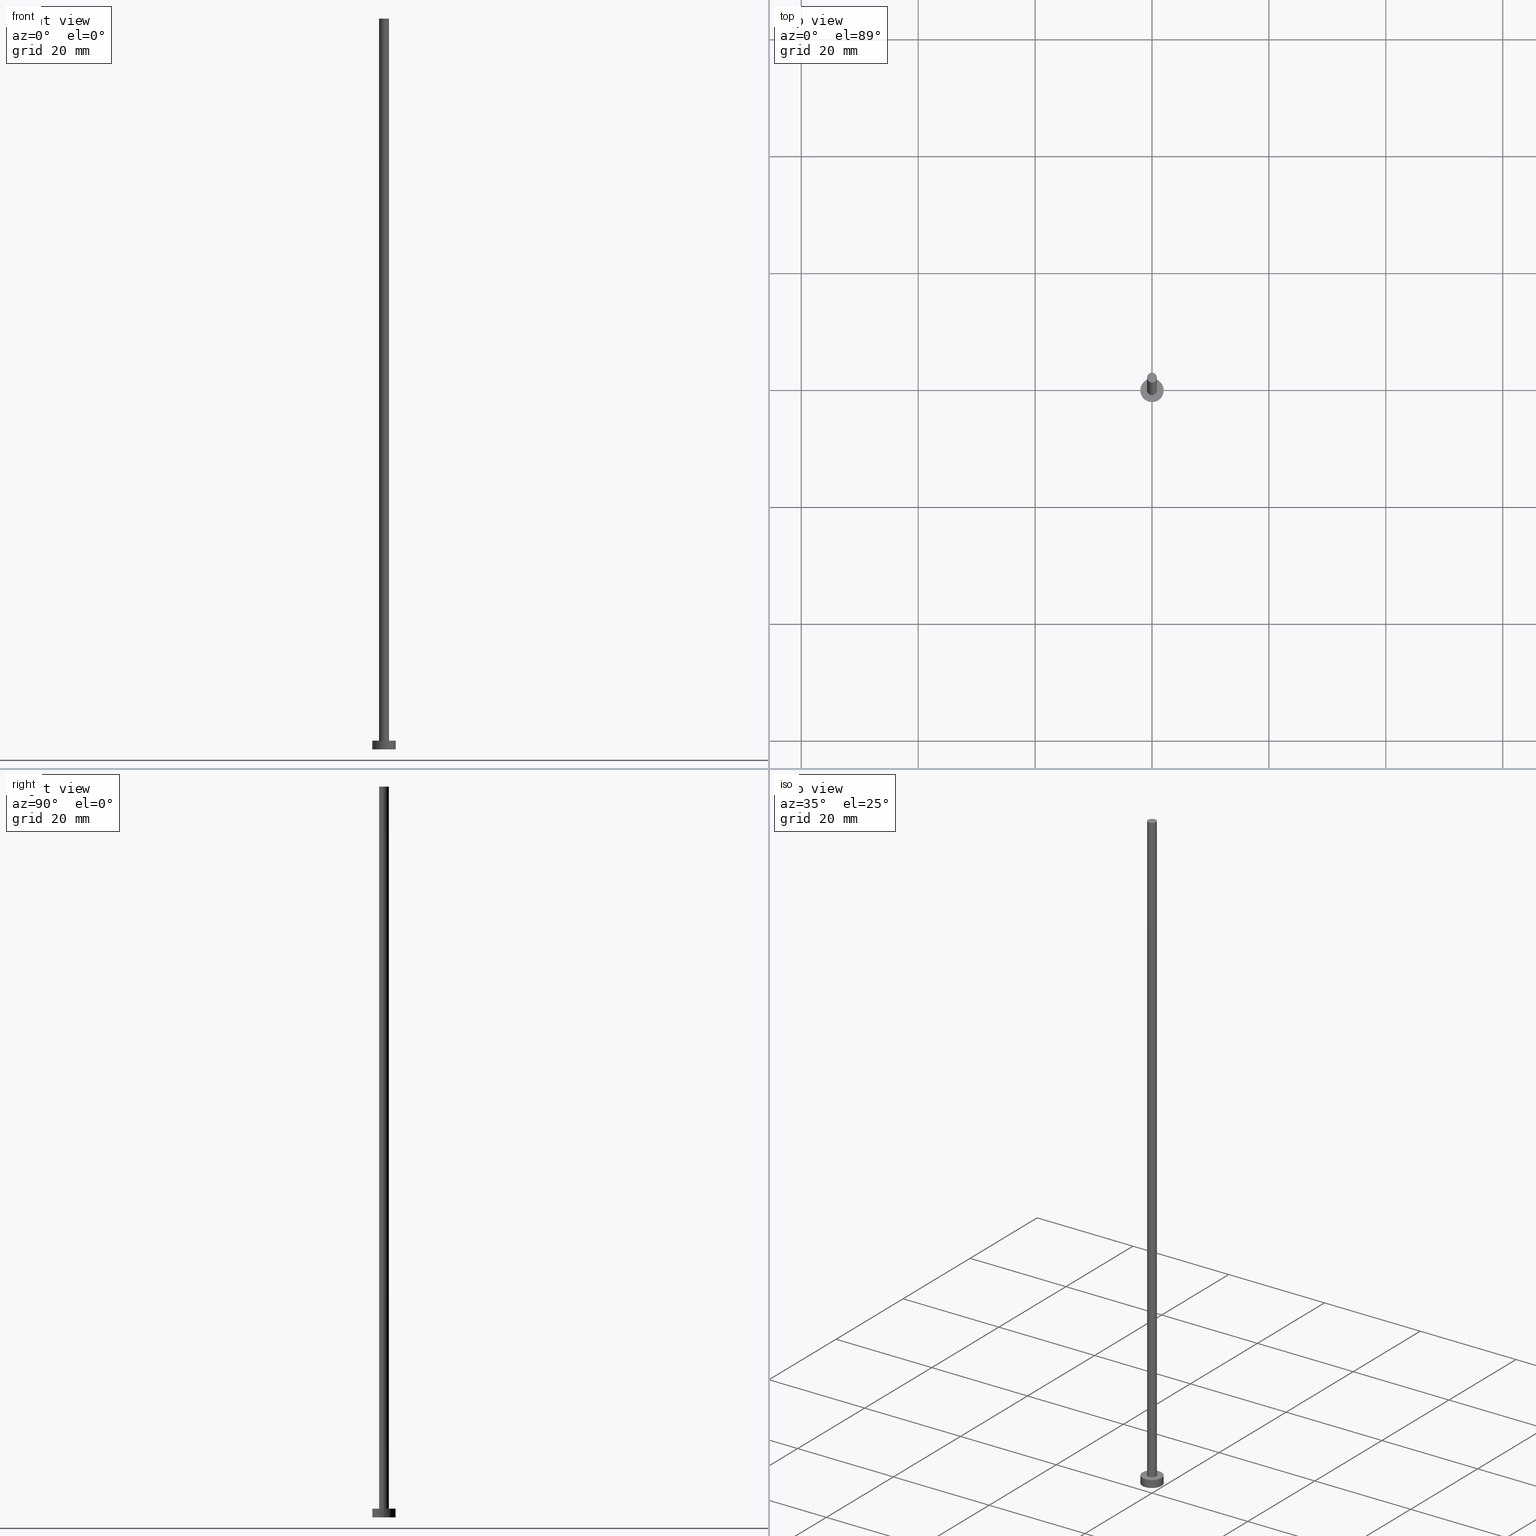
[diagram: canonical four-view strip — front | top / right | iso, engineering-drawing reading convention]
A machine part, canonical four-view strip (front | top / right | iso — engineering-drawing reading convention). The complete STEP part file that produces these views, byte-faithful:
ISO-10303-21;
HEADER;
FILE_DESCRIPTION (( 'STEP AP203' ),
    '1' );
FILE_NAME ('465d.STEP',
    '2023-02-12T12:55:21',
    ( '' ),
    ( '' ),
    'SwSTEP 2.0',
    'SolidWorks 2019',
    '' );
FILE_SCHEMA (( 'CONFIG_CONTROL_DESIGN' ));
ENDSEC;

DATA;
#1 = ORIENTED_EDGE ( 'NONE', *, *, #132, .F. ) ;
#2 = PERSON_AND_ORGANIZATION ( #13, #120 ) ;
#3 = DIRECTION ( 'NONE',  ( 0.000000000000000000, 0.000000000000000000, 1.000000000000000000 ) ) ;
#4 = EDGE_LOOP ( 'NONE', ( #87, #183 ) ) ;
#5 = AXIS2_PLACEMENT_3D ( 'NONE', #180, #146, #45 ) ;
#6 = CARTESIAN_POINT ( 'NONE',  ( 0.8499999999999999778, 1.040949779275250140E-16, 1.500000000000000000 ) ) ;
#7 = CARTESIAN_POINT ( 'NONE',  ( -2.000000000000000000, 0.000000000000000000, 1.500000000000000000 ) ) ;
#8 = ORIENTED_EDGE ( 'NONE', *, *, #220, .F. ) ;
#9 = PRODUCT_DEFINITION_FORMATION_WITH_SPECIFIED_SOURCE ( 'LIBOVOLN�', '', #117, .NOT_KNOWN. ) ;
#10 = AXIS2_PLACEMENT_3D ( 'NONE', #24, #3, #105 ) ;
#11 = COORDINATED_UNIVERSAL_TIME_OFFSET ( 1, 0, .AHEAD. ) ;
#12 = LINE ( 'NONE', #93, #127 ) ;
#13 = PERSON ( 'NEUR�EN�', 'NEUR�EN�', 'NEUR�EN�', ('NEUR�EN�'), ('NEUR�EN�'), ('NEUR�EN�') ) ;
#14 =( GEOMETRIC_REPRESENTATION_CONTEXT ( 3 ) GLOBAL_UNCERTAINTY_ASSIGNED_CONTEXT ( ( #116 ) ) GLOBAL_UNIT_ASSIGNED_CONTEXT ( ( #72, #52, #51 ) ) REPRESENTATION_CONTEXT ( 'NONE', 'WORKASPACE' ) );
#15 = AXIS2_PLACEMENT_3D ( 'NONE', #66, #202, #185 ) ;
#16 = CARTESIAN_POINT ( 'NONE',  ( 0.000000000000000000, 0.000000000000000000, 1.500000000000000000 ) ) ;
#17 = CC_DESIGN_APPROVAL ( #42, ( #9 ) ) ;
#18 = PERSON_AND_ORGANIZATION ( #13, #120 ) ;
#19 = CIRCLE ( 'NONE', #36, 2.000000000000000000 ) ;
#20 = DIRECTION ( 'NONE',  ( 0.000000000000000000, 0.000000000000000000, 1.000000000000000000 ) ) ;
#21 = ORIENTED_EDGE ( 'NONE', *, *, #189, .T. ) ;
#22 = DIRECTION ( 'NONE',  ( 0.000000000000000000, 0.000000000000000000, 1.000000000000000000 ) ) ;
#23 = LOCAL_TIME ( 13, 55, 21.00000000000000000, #11 ) ;
#24 = CARTESIAN_POINT ( 'NONE',  ( 0.000000000000000000, 0.000000000000000000, 125.0000000000000000 ) ) ;
#25 = VERTEX_POINT ( 'NONE', #188 ) ;
#26 = APPROVAL_STATUS ( 'not_yet_approved' ) ;
#27 = ORIENTED_EDGE ( 'NONE', *, *, #211, .T. ) ;
#28 = LOCAL_TIME ( 13, 55, 21.00000000000000000, #133 ) ;
#29 = DIRECTION ( 'NONE',  ( -0.000000000000000000, -0.000000000000000000, -1.000000000000000000 ) ) ;
#30 = CC_DESIGN_DATE_AND_TIME_ASSIGNMENT ( #174, #251, ( #167 ) ) ;
#31 = APPROVAL_DATE_TIME ( #108, #42 ) ;
#32 = APPROVAL_DATE_TIME ( #177, #119 ) ;
#33 = PLANE ( 'NONE',  #194 ) ;
#34 = CC_DESIGN_APPROVAL ( #119, ( #167 ) ) ;
#35 = PERSON_AND_ORGANIZATION ( #13, #120 ) ;
#36 = AXIS2_PLACEMENT_3D ( 'NONE', #118, #20, #101 ) ;
#37 = CC_DESIGN_PERSON_AND_ORGANIZATION_ASSIGNMENT ( #250, #98, ( #9 ) ) ;
#38 = DIRECTION ( 'NONE',  ( 0.000000000000000000, 0.000000000000000000, 1.000000000000000000 ) ) ;
#39 = PLANE ( 'NONE',  #215 ) ;
#40 = COORDINATED_UNIVERSAL_TIME_OFFSET ( 1, 0, .AHEAD. ) ;
#41 = DIRECTION ( 'NONE',  ( -1.000000000000000000, 0.000000000000000000, 0.000000000000000000 ) ) ;
#42 = APPROVAL ( #199, 'NEUR�EN�' ) ;
#43 = ORIENTED_EDGE ( 'NONE', *, *, #223, .F. ) ;
#44 = CARTESIAN_POINT ( 'NONE',  ( 0.8499999999999999778, 1.040949779275250140E-16, 125.0000000000000000 ) ) ;
#45 = DIRECTION ( 'NONE',  ( 1.000000000000000000, 0.000000000000000000, 0.000000000000000000 ) ) ;
#46 = ADVANCED_FACE ( 'NONE', ( #49, #206 ), #255, .T. ) ;
#47 = CARTESIAN_POINT ( 'NONE',  ( 0.000000000000000000, 0.000000000000000000, 0.000000000000000000 ) ) ;
#48 = EDGE_LOOP ( 'NONE', ( #236, #162 ) ) ;
#49 = FACE_BOUND ( 'NONE', #71, .T. ) ;
#50 = CALENDAR_DATE ( 2023, 12, 2 ) ;
#51 =( NAMED_UNIT ( * ) SI_UNIT ( $, .STERADIAN. ) SOLID_ANGLE_UNIT ( ) );
#52 =( NAMED_UNIT ( * ) PLANE_ANGLE_UNIT ( ) SI_UNIT ( $, .RADIAN. ) );
#53 = ORIENTED_EDGE ( 'NONE', *, *, #88, .T. ) ;
#54 = AXIS2_PLACEMENT_3D ( 'NONE', #47, #126, #150 ) ;
#55 = SECURITY_CLASSIFICATION_LEVEL ( 'unclassified' ) ;
#56 = CLOSED_SHELL ( 'NONE', ( #78, #239, #253, #46, #76, #193, #96 ) ) ;
#57 = LOCAL_TIME ( 13, 55, 21.00000000000000000, #63 ) ;
#58 = COORDINATED_UNIVERSAL_TIME_OFFSET ( 1, 0, .AHEAD. ) ;
#59 = DIRECTION ( 'NONE',  ( 1.000000000000000000, 0.000000000000000000, -0.000000000000000000 ) ) ;
#60 = APPROVAL_ROLE ( '' ) ;
#61 = APPROVAL_DATE_TIME ( #234, #85 ) ;
#62 = ORIENTED_EDGE ( 'NONE', *, *, #88, .F. ) ;
#63 = COORDINATED_UNIVERSAL_TIME_OFFSET ( 1, 0, .AHEAD. ) ;
#64 = AXIS2_PLACEMENT_3D ( 'NONE', #134, #159, #138 ) ;
#65 = ORIENTED_EDGE ( 'NONE', *, *, #223, .T. ) ;
#66 = CARTESIAN_POINT ( 'NONE',  ( 0.000000000000000000, 0.000000000000000000, 1.500000000000000000 ) ) ;
#67 = VERTEX_POINT ( 'NONE', #195 ) ;
#68 = CYLINDRICAL_SURFACE ( 'NONE', #228, 0.8499999999999999778 ) ;
#69 = DIRECTION ( 'NONE',  ( -1.000000000000000000, 0.000000000000000000, 0.000000000000000000 ) ) ;
#70 = PERSON_AND_ORGANIZATION_ROLE ( 'design_owner' ) ;
#71 = EDGE_LOOP ( 'NONE', ( #80, #205 ) ) ;
#72 =( LENGTH_UNIT ( ) NAMED_UNIT ( * ) SI_UNIT ( .MILLI., .METRE. ) );
#73 = EDGE_CURVE ( 'NONE', #25, #141, #91, .T. ) ;
#74 = LOCAL_TIME ( 13, 55, 21.00000000000000000, #40 ) ;
#75 = DIRECTION ( 'NONE',  ( 1.000000000000000000, 0.000000000000000000, 0.000000000000000000 ) ) ;
#76 = ADVANCED_FACE ( 'NONE', ( #213 ), #33, .F. ) ;
#77 = DIRECTION ( 'NONE',  ( 0.000000000000000000, 0.000000000000000000, 1.000000000000000000 ) ) ;
#78 = ADVANCED_FACE ( 'NONE', ( #79 ), #231, .T. ) ;
#79 = FACE_OUTER_BOUND ( 'NONE', #145, .T. ) ;
#80 = ORIENTED_EDGE ( 'NONE', *, *, #73, .F. ) ;
#81 = PERSON_AND_ORGANIZATION ( #13, #120 ) ;
#82 = CARTESIAN_POINT ( 'NONE',  ( 0.000000000000000000, 0.000000000000000000, 125.0000000000000000 ) ) ;
#83 = CIRCLE ( 'NONE', #10, 0.8499999999999999778 ) ;
#84 = ORIENTED_EDGE ( 'NONE', *, *, #179, .F. ) ;
#85 = APPROVAL ( #97, 'NEUR�EN�' ) ;
#86 = ORIENTED_EDGE ( 'NONE', *, *, #137, .T. ) ;
#87 = ORIENTED_EDGE ( 'NONE', *, *, #123, .T. ) ;
#88 = EDGE_CURVE ( 'NONE', #243, #25, #252, .T. ) ;
#89 = CARTESIAN_POINT ( 'NONE',  ( 0.000000000000000000, 0.000000000000000000, 1.500000000000000000 ) ) ;
#90 = AXIS2_PLACEMENT_3D ( 'NONE', #240, #142, #122 ) ;
#91 = CIRCLE ( 'NONE', #230, 0.8499999999999999778 ) ;
#92 = ORIENTED_EDGE ( 'NONE', *, *, #129, .T. ) ;
#93 = CARTESIAN_POINT ( 'NONE',  ( 0.8499999999999999778, 1.040949779275250140E-16, 125.0000000000000000 ) ) ;
#94 = CC_DESIGN_SECURITY_CLASSIFICATION ( #140, ( #9 ) ) ;
#95 = CYLINDRICAL_SURFACE ( 'NONE', #149, 2.000000000000000000 ) ;
#96 = ADVANCED_FACE ( 'NONE', ( #233 ), #39, .T. ) ;
#97 = APPROVAL_STATUS ( 'not_yet_approved' ) ;
#98 = PERSON_AND_ORGANIZATION_ROLE ( 'design_supplier' ) ;
#99 = DIRECTION ( 'NONE',  ( 1.000000000000000000, 0.000000000000000000, -0.000000000000000000 ) ) ;
#100 = CARTESIAN_POINT ( 'NONE',  ( 0.000000000000000000, 0.000000000000000000, 1.500000000000000000 ) ) ;
#101 = DIRECTION ( 'NONE',  ( 1.000000000000000000, 0.000000000000000000, 0.000000000000000000 ) ) ;
#102 = CALENDAR_DATE ( 2023, 12, 2 ) ;
#103 = LOCAL_TIME ( 13, 55, 21.00000000000000000, #58 ) ;
#104 = PRODUCT_DEFINITION_SHAPE ( 'NONE', 'NONE',  #167 ) ;
#105 = DIRECTION ( 'NONE',  ( 1.000000000000000000, 0.000000000000000000, 0.000000000000000000 ) ) ;
#106 = CC_DESIGN_DATE_AND_TIME_ASSIGNMENT ( #248, #153, ( #140 ) ) ;
#107 = ORIENTED_EDGE ( 'NONE', *, *, #179, .T. ) ;
#108 = DATE_AND_TIME ( #50, #23 ) ;
#109 = DIRECTION ( 'NONE',  ( 1.000000000000000000, 0.000000000000000000, 0.000000000000000000 ) ) ;
#110 = DIRECTION ( 'NONE',  ( -0.000000000000000000, -0.000000000000000000, -1.000000000000000000 ) ) ;
#111 = APPLICATION_CONTEXT ( 'configuration controlled 3d designs of mechanical parts and assemblies' ) ;
#112 = FACE_OUTER_BOUND ( 'NONE', #124, .T. ) ;
#113 = CIRCLE ( 'NONE', #15, 0.8499999999999999778 ) ;
#114 = PRODUCT_RELATED_PRODUCT_CATEGORY ( 'detail', '', ( #117 ) ) ;
#115 = APPROVAL_PERSON_ORGANIZATION ( #237, #85, #229 ) ;
#116 = UNCERTAINTY_MEASURE_WITH_UNIT (LENGTH_MEASURE( 1.000000000000000082E-05 ), #72, 'distance_accuracy_value', 'NONE');
#117 = PRODUCT ( '465d', '465d', '', ( #204 ) ) ;
#118 = CARTESIAN_POINT ( 'NONE',  ( 0.000000000000000000, 0.000000000000000000, 1.500000000000000000 ) ) ;
#119 = APPROVAL ( #26, 'NEUR�EN�' ) ;
#120 = ORGANIZATION ( 'NEUR�EN�', 'NEUR�EN�', '' ) ;
#121 = FACE_OUTER_BOUND ( 'NONE', #181, .T. ) ;
#122 = DIRECTION ( 'NONE',  ( 1.000000000000000000, 0.000000000000000000, 0.000000000000000000 ) ) ;
#123 = EDGE_CURVE ( 'NONE', #164, #67, #19, .T. ) ;
#124 = EDGE_LOOP ( 'NONE', ( #219, #212, #21, #27 ) ) ;
#125 = APPLICATION_PROTOCOL_DEFINITION ( 'international standard', 'config_control_design', 1994, #144 ) ;
#126 = DIRECTION ( 'NONE',  ( 0.000000000000000000, 0.000000000000000000, 1.000000000000000000 ) ) ;
#127 = VECTOR ( 'NONE', #29, 1000.000000000000000 ) ;
#128 = ORIENTED_EDGE ( 'NONE', *, *, #73, .T. ) ;
#129 = EDGE_CURVE ( 'NONE', #67, #225, #184, .T. ) ;
#130 = CARTESIAN_POINT ( 'NONE',  ( 0.000000000000000000, 0.000000000000000000, 1.500000000000000000 ) ) ;
#131 = PERSON_AND_ORGANIZATION_ROLE ( 'classification_officer' ) ;
#132 = EDGE_CURVE ( 'NONE', #243, #166, #169, .T. ) ;
#133 = COORDINATED_UNIVERSAL_TIME_OFFSET ( 1, 0, .AHEAD. ) ;
#134 = CARTESIAN_POINT ( 'NONE',  ( 0.000000000000000000, 0.000000000000000000, 125.0000000000000000 ) ) ;
#135 = CARTESIAN_POINT ( 'NONE',  ( -0.8499999999999999778, 0.000000000000000000, 125.0000000000000000 ) ) ;
#136 = CIRCLE ( 'NONE', #155, 2.000000000000000000 ) ;
#137 = EDGE_CURVE ( 'NONE', #141, #25, #113, .T. ) ;
#138 = DIRECTION ( 'NONE',  ( -1.000000000000000000, 0.000000000000000000, 0.000000000000000000 ) ) ;
#139 = SHAPE_DEFINITION_REPRESENTATION ( #104, #165 ) ;
#140 = SECURITY_CLASSIFICATION ( '', '', #55 ) ;
#141 = VERTEX_POINT ( 'NONE', #6 ) ;
#142 = DIRECTION ( 'NONE',  ( 0.000000000000000000, 0.000000000000000000, 1.000000000000000000 ) ) ;
#143 = ORIENTED_EDGE ( 'NONE', *, *, #151, .T. ) ;
#144 = APPLICATION_CONTEXT ( 'configuration controlled 3d designs of mechanical parts and assemblies' ) ;
#145 = EDGE_LOOP ( 'NONE', ( #84, #65, #86, #62 ) ) ;
#146 = DIRECTION ( 'NONE',  ( 0.000000000000000000, 0.000000000000000000, 1.000000000000000000 ) ) ;
#147 = EDGE_LOOP ( 'NONE', ( #8, #92, #143, #241 ) ) ;
#148 = CC_DESIGN_PERSON_AND_ORGANIZATION_ASSIGNMENT ( #18, #158, ( #167 ) ) ;
#149 = AXIS2_PLACEMENT_3D ( 'NONE', #16, #110, #69 ) ;
#150 = DIRECTION ( 'NONE',  ( 1.000000000000000000, 0.000000000000000000, 0.000000000000000000 ) ) ;
#151 = EDGE_CURVE ( 'NONE', #225, #203, #192, .T. ) ;
#152 = CALENDAR_DATE ( 2023, 12, 2 ) ;
#153 = DATE_TIME_ROLE ( 'classification_date' ) ;
#154 = DIRECTION ( 'NONE',  ( 0.000000000000000000, 0.000000000000000000, 1.000000000000000000 ) ) ;
#155 = AXIS2_PLACEMENT_3D ( 'NONE', #200, #22, #227 ) ;
#156 = DIRECTION ( 'NONE',  ( 0.000000000000000000, 0.000000000000000000, 1.000000000000000000 ) ) ;
#157 = CARTESIAN_POINT ( 'NONE',  ( 0.000000000000000000, 0.000000000000000000, 1.500000000000000000 ) ) ;
#158 = PERSON_AND_ORGANIZATION_ROLE ( 'creator' ) ;
#159 = DIRECTION ( 'NONE',  ( -0.000000000000000000, -0.000000000000000000, -1.000000000000000000 ) ) ;
#160 = CC_DESIGN_PERSON_AND_ORGANIZATION_ASSIGNMENT ( #81, #131, ( #140 ) ) ;
#161 = CARTESIAN_POINT ( 'NONE',  ( 2.000000000000000000, 2.449293598294706414E-16, 1.500000000000000000 ) ) ;
#162 = ORIENTED_EDGE ( 'NONE', *, *, #151, .F. ) ;
#163 = DIRECTION ( 'NONE',  ( -0.000000000000000000, -0.000000000000000000, -1.000000000000000000 ) ) ;
#164 = VERTEX_POINT ( 'NONE', #235 ) ;
#165 = ADVANCED_BREP_SHAPE_REPRESENTATION ( '465d', ( #172, #54 ), #14 ) ;
#166 = VERTEX_POINT ( 'NONE', #44 ) ;
#167 = PRODUCT_DEFINITION ( 'NEZN�M�', '', #9, #176 ) ;
#168 = LINE ( 'NONE', #7, #222 ) ;
#169 = CIRCLE ( 'NONE', #5, 0.8499999999999999778 ) ;
#170 = CYLINDRICAL_SURFACE ( 'NONE', #210, 2.000000000000000000 ) ;
#171 = DIRECTION ( 'NONE',  ( 0.000000000000000000, 0.000000000000000000, 1.000000000000000000 ) ) ;
#172 = MANIFOLD_SOLID_BREP ( 'P�idat vysunut�m3', #56 ) ;
#173 = FACE_OUTER_BOUND ( 'NONE', #147, .T. ) ;
#174 = DATE_AND_TIME ( #152, #28 ) ;
#175 = CARTESIAN_POINT ( 'NONE',  ( 0.000000000000000000, 0.000000000000000000, 0.000000000000000000 ) ) ;
#176 = DESIGN_CONTEXT ( 'detailed design', #111, 'design' ) ;
#177 = DATE_AND_TIME ( #214, #103 ) ;
#178 = PERSON_AND_ORGANIZATION_ROLE ( 'creator' ) ;
#179 = EDGE_CURVE ( 'NONE', #166, #243, #83, .T. ) ;
#180 = CARTESIAN_POINT ( 'NONE',  ( 0.000000000000000000, 0.000000000000000000, 125.0000000000000000 ) ) ;
#181 = EDGE_LOOP ( 'NONE', ( #43, #1, #53, #128 ) ) ;
#182 = APPROVAL_PERSON_ORGANIZATION ( #208, #119, #190 ) ;
#183 = ORIENTED_EDGE ( 'NONE', *, *, #220, .T. ) ;
#184 = LINE ( 'NONE', #161, #254 ) ;
#185 = DIRECTION ( 'NONE',  ( 1.000000000000000000, 0.000000000000000000, 0.000000000000000000 ) ) ;
#186 = APPROVAL_PERSON_ORGANIZATION ( #35, #42, #60 ) ;
#187 = CARTESIAN_POINT ( 'NONE',  ( -0.8499999999999999778, 0.000000000000000000, 125.0000000000000000 ) ) ;
#188 = CARTESIAN_POINT ( 'NONE',  ( -0.8499999999999999778, 0.000000000000000000, 1.500000000000000000 ) ) ;
#189 = EDGE_CURVE ( 'NONE', #164, #203, #168, .T. ) ;
#190 = APPROVAL_ROLE ( '' ) ;
#191 = CALENDAR_DATE ( 2023, 12, 2 ) ;
#192 = CIRCLE ( 'NONE', #90, 2.000000000000000000 ) ;
#193 = ADVANCED_FACE ( 'NONE', ( #121 ), #68, .T. ) ;
#194 = AXIS2_PLACEMENT_3D ( 'NONE', #175, #156, #217 ) ;
#195 = CARTESIAN_POINT ( 'NONE',  ( 2.000000000000000000, 2.449293598294706414E-16, 1.500000000000000000 ) ) ;
#196 = DIRECTION ( 'NONE',  ( -0.000000000000000000, -0.000000000000000000, -1.000000000000000000 ) ) ;
#197 = CARTESIAN_POINT ( 'NONE',  ( -2.000000000000000000, 0.000000000000000000, 0.000000000000000000 ) ) ;
#198 = AXIS2_PLACEMENT_3D ( 'NONE', #100, #154, #99 ) ;
#199 = APPROVAL_STATUS ( 'not_yet_approved' ) ;
#200 = CARTESIAN_POINT ( 'NONE',  ( 0.000000000000000000, 0.000000000000000000, 0.000000000000000000 ) ) ;
#201 = CC_DESIGN_APPROVAL ( #85, ( #140 ) ) ;
#202 = DIRECTION ( 'NONE',  ( 0.000000000000000000, 0.000000000000000000, 1.000000000000000000 ) ) ;
#203 = VERTEX_POINT ( 'NONE', #197 ) ;
#204 = MECHANICAL_CONTEXT ( 'NONE', #144, 'mechanical' ) ;
#205 = ORIENTED_EDGE ( 'NONE', *, *, #137, .F. ) ;
#206 = FACE_OUTER_BOUND ( 'NONE', #4, .T. ) ;
#207 = CIRCLE ( 'NONE', #238, 2.000000000000000000 ) ;
#208 = PERSON_AND_ORGANIZATION ( #13, #120 ) ;
#209 = EDGE_LOOP ( 'NONE', ( #221, #107 ) ) ;
#210 = AXIS2_PLACEMENT_3D ( 'NONE', #89, #244, #247 ) ;
#211 = EDGE_CURVE ( 'NONE', #203, #225, #136, .T. ) ;
#212 = ORIENTED_EDGE ( 'NONE', *, *, #123, .F. ) ;
#213 = FACE_OUTER_BOUND ( 'NONE', #48, .T. ) ;
#214 = CALENDAR_DATE ( 2023, 12, 2 ) ;
#215 = AXIS2_PLACEMENT_3D ( 'NONE', #216, #38, #59 ) ;
#216 = CARTESIAN_POINT ( 'NONE',  ( 0.000000000000000000, 0.000000000000000000, 125.0000000000000000 ) ) ;
#217 = DIRECTION ( 'NONE',  ( 1.000000000000000000, 0.000000000000000000, -0.000000000000000000 ) ) ;
#218 = DIRECTION ( 'NONE',  ( -0.000000000000000000, -0.000000000000000000, -1.000000000000000000 ) ) ;
#219 = ORIENTED_EDGE ( 'NONE', *, *, #129, .F. ) ;
#220 = EDGE_CURVE ( 'NONE', #67, #164, #207, .T. ) ;
#221 = ORIENTED_EDGE ( 'NONE', *, *, #132, .T. ) ;
#222 = VECTOR ( 'NONE', #242, 1000.000000000000000 ) ;
#223 = EDGE_CURVE ( 'NONE', #166, #141, #12, .T. ) ;
#224 = APPLICATION_PROTOCOL_DEFINITION ( 'international standard', 'config_control_design', 1994, #111 ) ;
#225 = VERTEX_POINT ( 'NONE', #246 ) ;
#226 = CC_DESIGN_PERSON_AND_ORGANIZATION_ASSIGNMENT ( #245, #70, ( #117 ) ) ;
#227 = DIRECTION ( 'NONE',  ( 1.000000000000000000, 0.000000000000000000, 0.000000000000000000 ) ) ;
#228 = AXIS2_PLACEMENT_3D ( 'NONE', #82, #218, #41 ) ;
#229 = APPROVAL_ROLE ( '' ) ;
#230 = AXIS2_PLACEMENT_3D ( 'NONE', #157, #77, #75 ) ;
#231 = CYLINDRICAL_SURFACE ( 'NONE', #64, 0.8499999999999999778 ) ;
#232 = VECTOR ( 'NONE', #196, 1000.000000000000000 ) ;
#233 = FACE_OUTER_BOUND ( 'NONE', #209, .T. ) ;
#234 = DATE_AND_TIME ( #102, #74 ) ;
#235 = CARTESIAN_POINT ( 'NONE',  ( -2.000000000000000000, 0.000000000000000000, 1.500000000000000000 ) ) ;
#236 = ORIENTED_EDGE ( 'NONE', *, *, #211, .F. ) ;
#237 = PERSON_AND_ORGANIZATION ( #13, #120 ) ;
#238 = AXIS2_PLACEMENT_3D ( 'NONE', #130, #171, #109 ) ;
#239 = ADVANCED_FACE ( 'NONE', ( #173 ), #95, .T. ) ;
#240 = CARTESIAN_POINT ( 'NONE',  ( 0.000000000000000000, 0.000000000000000000, 0.000000000000000000 ) ) ;
#241 = ORIENTED_EDGE ( 'NONE', *, *, #189, .F. ) ;
#242 = DIRECTION ( 'NONE',  ( -0.000000000000000000, -0.000000000000000000, -1.000000000000000000 ) ) ;
#243 = VERTEX_POINT ( 'NONE', #187 ) ;
#244 = DIRECTION ( 'NONE',  ( -0.000000000000000000, -0.000000000000000000, -1.000000000000000000 ) ) ;
#245 = PERSON_AND_ORGANIZATION ( #13, #120 ) ;
#246 = CARTESIAN_POINT ( 'NONE',  ( 2.000000000000000000, 2.449293598294706414E-16, 0.000000000000000000 ) ) ;
#247 = DIRECTION ( 'NONE',  ( -1.000000000000000000, 0.000000000000000000, 0.000000000000000000 ) ) ;
#248 = DATE_AND_TIME ( #191, #57 ) ;
#249 = CC_DESIGN_PERSON_AND_ORGANIZATION_ASSIGNMENT ( #2, #178, ( #9 ) ) ;
#250 = PERSON_AND_ORGANIZATION ( #13, #120 ) ;
#251 = DATE_TIME_ROLE ( 'creation_date' ) ;
#252 = LINE ( 'NONE', #135, #232 ) ;
#253 = ADVANCED_FACE ( 'NONE', ( #112 ), #170, .T. ) ;
#254 = VECTOR ( 'NONE', #163, 1000.000000000000000 ) ;
#255 = PLANE ( 'NONE',  #198 ) ;
ENDSEC;
END-ISO-10303-21;
